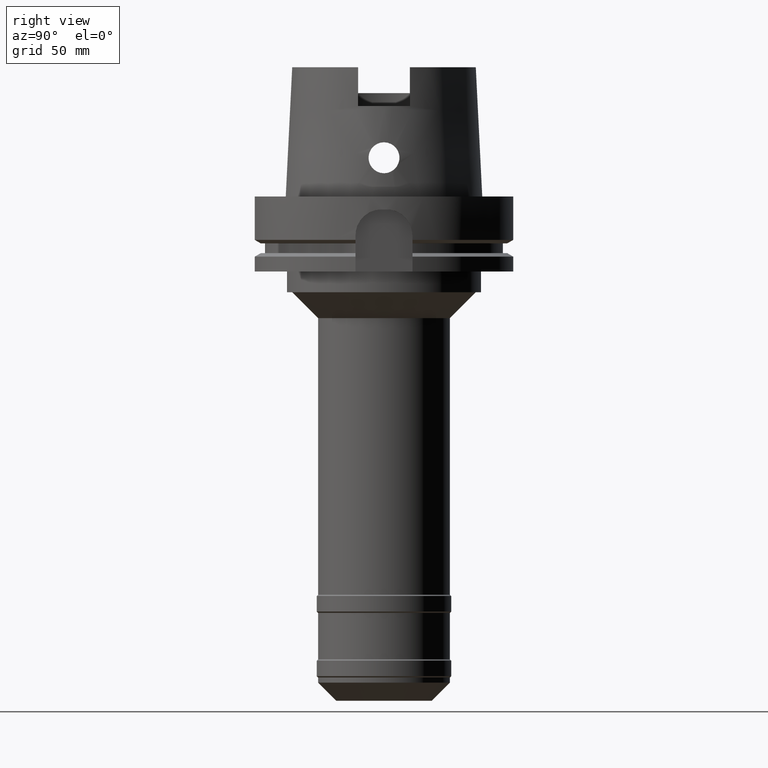
[diagram: clean part render]
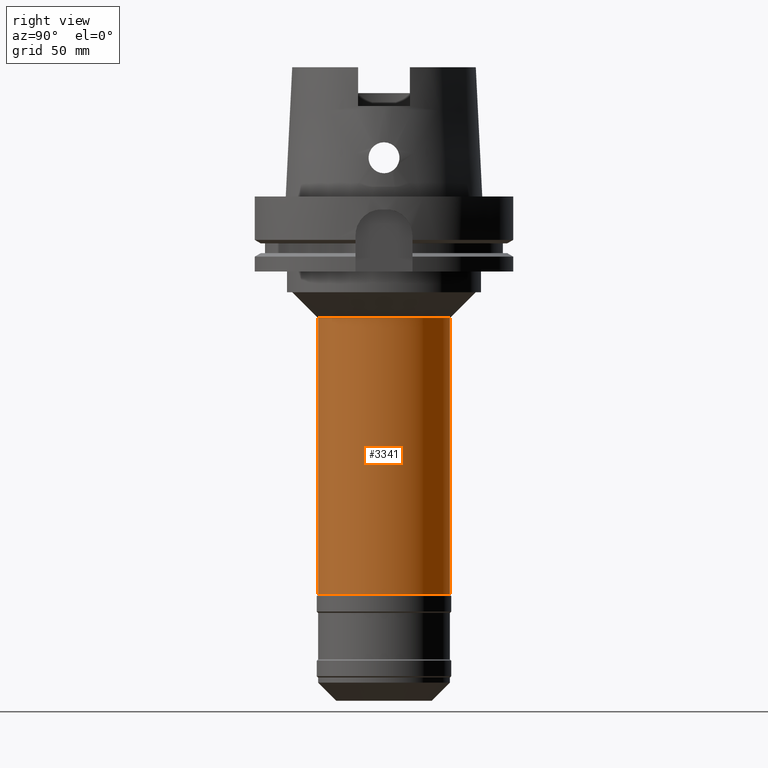
[diagram: same view with one face highlighted and labeled with its STEP entity id]
A machine part, right view. The second image highlights one B-rep face of the part: STEP entity #3341.
In plain terms, the highlighted cylindrical surface (partial cylindrical patch) has radius 25.5 mm, axis along (0, 0, 1).
Its self-contained STEP definition (entity closure, byte-faithful):
#1344=CARTESIAN_POINT('',(0.E0,0.E0,-4.7E1));
#1345=DIRECTION('',(0.E0,0.E0,-1.E0));
#1346=DIRECTION('',(0.E0,1.E0,0.E0));
#1347=AXIS2_PLACEMENT_3D('',#1344,#1345,#1346);
#1352=DIRECTION('',(0.E0,0.E0,-1.E0));
#1353=VECTOR('',#1352,1.07E2);
#1354=CARTESIAN_POINT('',(0.E0,2.55E1,-4.7E1));
#1355=LINE('',#1354,#1353);
#1359=DIRECTION('',(0.E0,0.E0,-1.E0));
#1360=VECTOR('',#1359,1.07E2);
#1361=CARTESIAN_POINT('',(0.E0,-2.55E1,-4.7E1));
#1362=LINE('',#1361,#1360);
#1404=CARTESIAN_POINT('',(0.E0,0.E0,-1.54E2));
#1405=DIRECTION('',(0.E0,0.E0,1.E0));
#1406=DIRECTION('',(0.E0,-1.E0,0.E0));
#1407=AXIS2_PLACEMENT_3D('',#1404,#1405,#1406);
#2234=CARTESIAN_POINT('',(0.E0,2.55E1,-4.7E1));
#2235=VERTEX_POINT('',#2234);
#2236=CARTESIAN_POINT('',(0.E0,-2.55E1,-4.7E1));
#2237=VERTEX_POINT('',#2236);
#2238=CARTESIAN_POINT('',(0.E0,2.55E1,-1.54E2));
#2239=VERTEX_POINT('',#2238);
#2240=CARTESIAN_POINT('',(0.E0,-2.55E1,-1.54E2));
#2241=VERTEX_POINT('',#2240);
#3327=CARTESIAN_POINT('',(0.E0,0.E0,-2.0725E2));
#3328=DIRECTION('',(0.E0,0.E0,1.E0));
#3329=DIRECTION('',(0.E0,1.E0,0.E0));
#3330=AXIS2_PLACEMENT_3D('',#3327,#3328,#3329);
#3331=CYLINDRICAL_SURFACE('',#3330,2.55E1);
#3333=ORIENTED_EDGE('',*,*,#3332,.T.);
#3335=ORIENTED_EDGE('',*,*,#3334,.F.);
#3337=ORIENTED_EDGE('',*,*,#3336,.F.);
#3338=ORIENTED_EDGE('',*,*,#3320,.F.);
#3339=EDGE_LOOP('',(#3333,#3335,#3337,#3338));
#3340=FACE_OUTER_BOUND('',#3339,.F.);
#1348=CIRCLE('',#1347,2.55E1);
#1408=CIRCLE('',#1407,2.55E1);
#3320=EDGE_CURVE('',#2235,#2237,#1348,.T.);
#3332=EDGE_CURVE('',#2235,#2239,#1355,.T.);
#3334=EDGE_CURVE('',#2241,#2239,#1408,.T.);
#3336=EDGE_CURVE('',#2237,#2241,#1362,.T.);
#3341=ADVANCED_FACE('',(#3340),#3331,.T.);